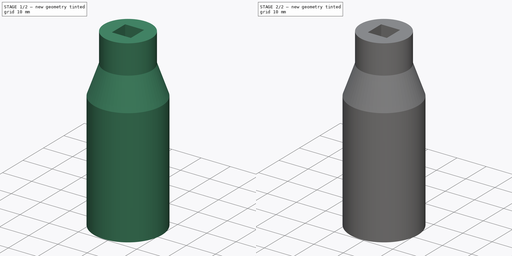
[diagram: build sequence overview — one tinted view per stage of 2, left to right]
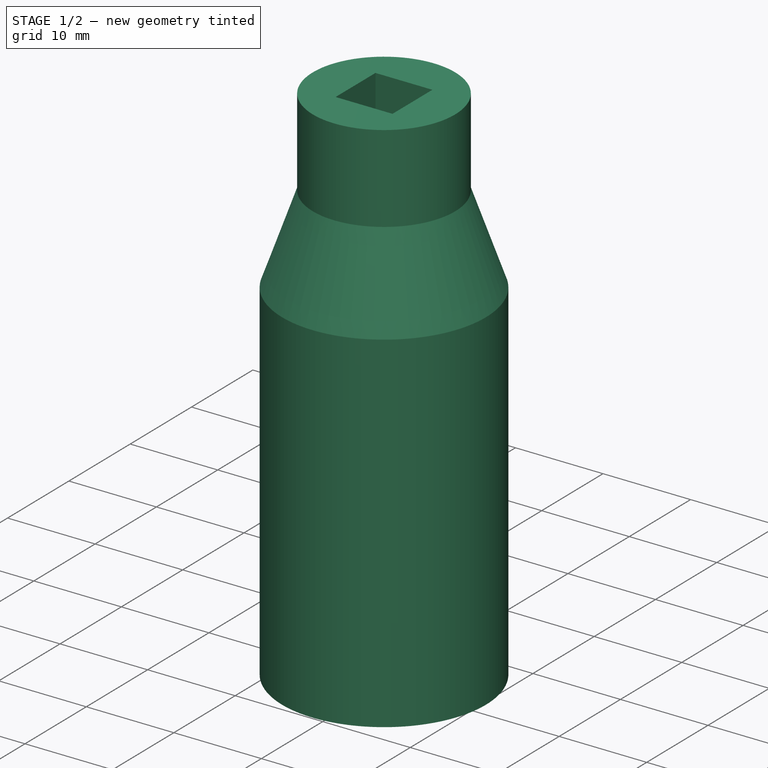
[diagram: stage 1 of 2 — iso view after this stage's code; geometry added in this stage tinted green]
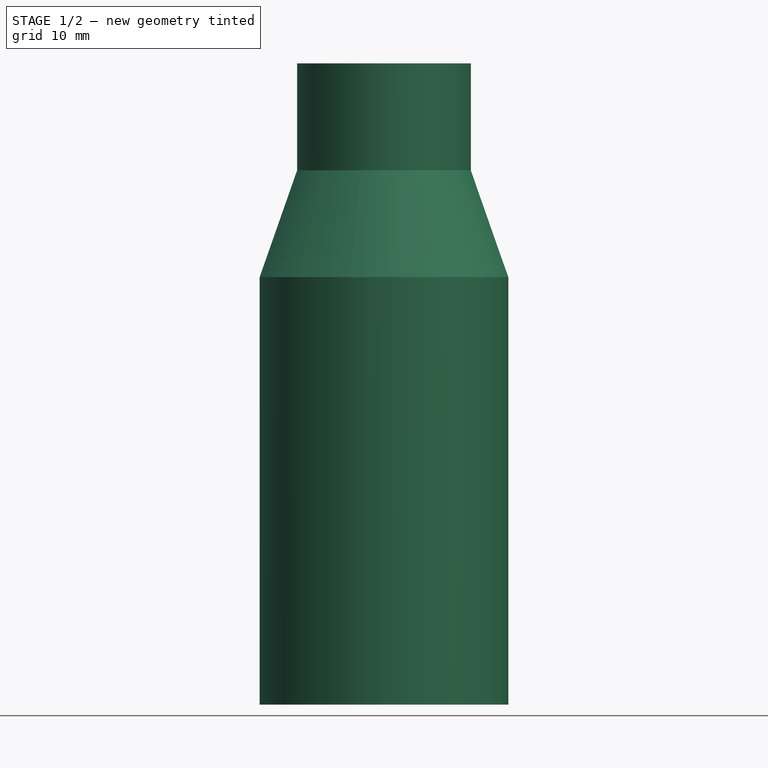
[diagram: stage 1 of 2 — front view after this stage's code; geometry added in this stage tinted green]
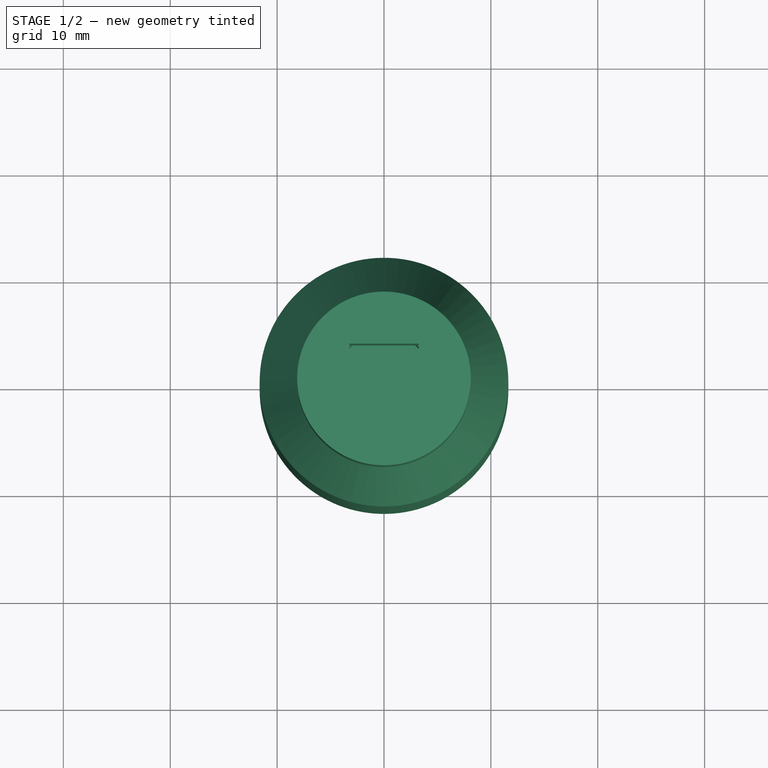
[diagram: stage 1 of 2 — top view after this stage's code; geometry added in this stage tinted green]
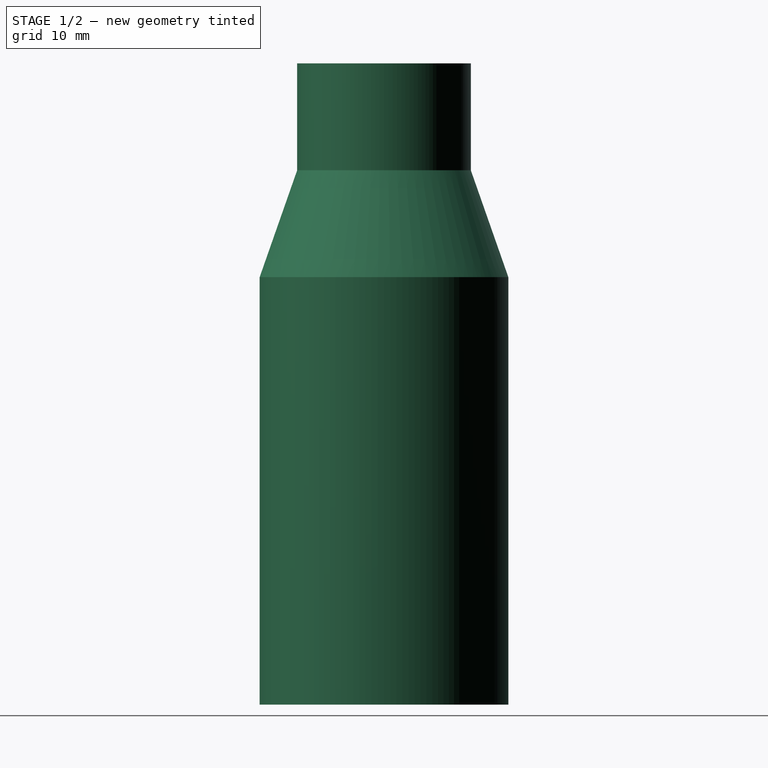
[diagram: stage 1 of 2 — right view after this stage's code; geometry added in this stage tinted green]
FCSTD DOCUMENT  (FreeCAD 0.20R29410 (Git))
Label: hex_socket
License: All rights reserved
LicenseURL: http://en.wikipedia.org/wiki/All_rights_reserved
objects: Sketcher::SketchObject×3, PartDesign::Pocket×2, Spreadsheet::Sheet×1, PartDesign::Revolution×1, PartDesign::Plane×1, PartDesign::Body×1
note: 11 computed .brp shape members not serialized (recipe doc carries the construction recipe); baked Part::Feature solids carry a one-line shape summary decoded from their .brp

FEATURE [Spreadsheet::Sheet] Spreadsheet
  cells = A1=Top height; B1=Top Socket size; C1=Top diameter scale factor; F1=Example values; A2(top_height)=10; B2(top_socket_diameter)=6.5; C2(top_diameter_scale)=2.5; F2=6.5; G2=Top Socket small; A3=Middle height; B3=Middle hole diameter; F3=10.4; G3=Bottom Hex nut M5; A4(middle_height)=10; B4(middle_hole_diameter)=9; F4=13; G4=Bottom Hex nut .312-18; A5=Bottom height; B5=Bottom hex size; C5=Bottom diameter scale factor; F5=17.9; G5=fuse holder; A6(bottom_height)=40; B6(bottom_hex_diameter)=17.9; C6(bottom_diameter_scale)=1.3
FEATURE [Sketcher::SketchObject] Sketch
  FullyConstrained = true
  MapMode = 5
  Placement = pos=(0,0,0) rot=(1,0,0;1.5708rad)
  Support = -> [XZ_Plane]
  expr: Constraints[18] = <<Spreadsheet>>.bottom_height
  expr: Constraints[19] = <<Spreadsheet>>.middle_height
  expr: Constraints[20] = <<Spreadsheet>>.top_height
  expr: Constraints[32] = <<Spreadsheet>>.middle_hole_diameter / 2
  expr: Constraints[33] = <<Spreadsheet>>.top_socket_diameter / 2 * <<Spreadsheet>>.top_diameter_scale
  expr: Constraints[34] = <<Spreadsheet>>.bottom_hex_diameter / 2 * <<Spreadsheet>>.bottom_diameter_scale
  sketch-geometry (13):
    g0: LineSegment StartX=0 StartY=0 StartZ=0 EndX=-11.635 EndY=0 EndZ=0
    g1: LineSegment StartX=-11.635 StartY=0 StartZ=0 EndX=-11.635 EndY=40 EndZ=0
    g2: LineSegment StartX=-11.635 StartY=40 StartZ=0 EndX=-8.125 EndY=50 EndZ=0
    g3: LineSegment StartX=-8.125 StartY=50 StartZ=0 EndX=-8.125 EndY=60 EndZ=0
    g4: LineSegment StartX=-8.125 StartY=60 StartZ=0 EndX=0 EndY=60 EndZ=0
    g5: LineSegment StartX=0 StartY=60 StartZ=0 EndX=0 EndY=0 EndZ=0
    g6: LineSegment StartX=-8.125 StartY=50 StartZ=0 EndX=0 EndY=50 EndZ=0
    g7: LineSegment StartX=-11.635 StartY=40 StartZ=0 EndX=0 EndY=40 EndZ=0
    g8: LineSegment StartX=0 StartY=60 StartZ=0 EndX=0 EndY=50 EndZ=0
    g9: LineSegment StartX=0 StartY=50 StartZ=0 EndX=-4.5 EndY=50 EndZ=0
    g10: LineSegment StartX=-4.5 StartY=50 StartZ=0 EndX=-4.5 EndY=40 EndZ=0
    g11: LineSegment StartX=-4.5 StartY=40 StartZ=0 EndX=0 EndY=40 EndZ=0
    g12: LineSegment StartX=0 StartY=40 StartZ=0 EndX=0 EndY=0 EndZ=0
  constraints (35):
    c: Coincident(g-1,g0)
    c: Horizontal(g0)
    c: Coincident(g0,g1)
    c: Vertical(g1)
    c: Coincident(g1,g2)
    c: Coincident(g2,g3)
    c: Vertical(g3)
    c: Coincident(g3,g4)
    c: Horizontal(g4)
    c: Coincident(g5,g4)
    c: Coincident(g5,g0)
    c: Vertical(g5)
    c: Coincident(g6,g2)
    c: PointOnObject(g6,g5)
    c: Horizontal(g6)
    c: Coincident(g7,g1)
    c: PointOnObject(g7,g5)
    c: Horizontal(g7)
    c: Distance(g1) = 40
    c: Distance(g2,g7) = 10
    c: Distance(g3) = 10
    c: Coincident(g4,g8)
    c: Coincident(g8,g6)
    c: Coincident(g8,g9)
    c: PointOnObject(g9,g6)
    c: Coincident(g9,g10)
    c: PointOnObject(g10,g7)
    c: Vertical(g10)
    c: Coincident(g10,g11)
    c: Coincident(g11,g7)
    c: Coincident(g11,g12)
    c: Coincident(g12,g0)
    c: Distance(g11) = 4.5
    c: Distance(g4) = 8.125
    c: Distance(g0) = 11.635
FEATURE [PartDesign::Revolution] Revolution  label="main"
  Angle = 360
  Axis = (0,-2e-16,1)
  Base = (0,0,0)
  Placement = pos=(0,0,0) rot=(1,0,0;1.5708rad)
  Profile = -> Sketch
  ReferenceAxis = -> Sketch [V_Axis]
FEATURE [PartDesign::Plane] DatumPlane  label="top_plane"
  AttachmentOffset = pos=(0,0,60) rot=(0,0,1;0rad)
  Length = 60
  MapMode = 5
  Placement = pos=(0,0,60) rot=(0,0,1;0rad)
  ResizeMode = 0
  Support = -> [XY_Plane]
  Width = 60
  expr: .AttachmentOffset.Base.z = <<Spreadsheet>>.bottom_height + <<Spreadsheet>>.middle_height + <<Spreadsheet>>.top_height
FEATURE [Sketcher::SketchObject] Sketch001
  FullyConstrained = true
  MapMode = 5
  Placement = pos=(0,0,60) rot=(0,0,1;0rad)
  Support = -> [DatumPlane]
  expr: Constraints[10] = <<Spreadsheet>>.top_socket_diameter
  sketch-geometry (4):
    g0: LineSegment StartX=-3.25 StartY=3.25 StartZ=0 EndX=3.25 EndY=3.25 EndZ=0
    g1: LineSegment StartX=3.25 StartY=3.25 StartZ=0 EndX=3.25 EndY=-3.25 EndZ=0
    g2: LineSegment StartX=3.25 StartY=-3.25 StartZ=0 EndX=-3.25 EndY=-3.25 EndZ=0
    g3: LineSegment StartX=-3.25 StartY=-3.25 StartZ=0 EndX=-3.25 EndY=3.25 EndZ=0
  constraints (11):
    c: Coincident(g0,g1)
    c: Coincident(g1,g2)
    c: Coincident(g2,g3)
    c: Coincident(g3,g0)
    c: Horizontal(g0)
    c: Horizontal(g2)
    c: Vertical(g1)
    c: Vertical(g3)
    c: Symmetric(g0,g2,g-1)
    c: Equal(g1,g0)
    c: Distance(g1) = 6.5
FEATURE [PartDesign::Pocket] Pocket  label="top_socket_hole"
  BaseFeature = -> Revolution
  Direction = (0,0,-1)
  Length = 10
  Length2 = 5
  Placement = pos=(0,0,0) rot=(1,0,0;1.5708rad)
  Profile = -> Sketch001
  ReferenceAxis = -> Sketch001 [N_Axis]
  Type = 0
  expr: Length = <<Spreadsheet>>.top_height
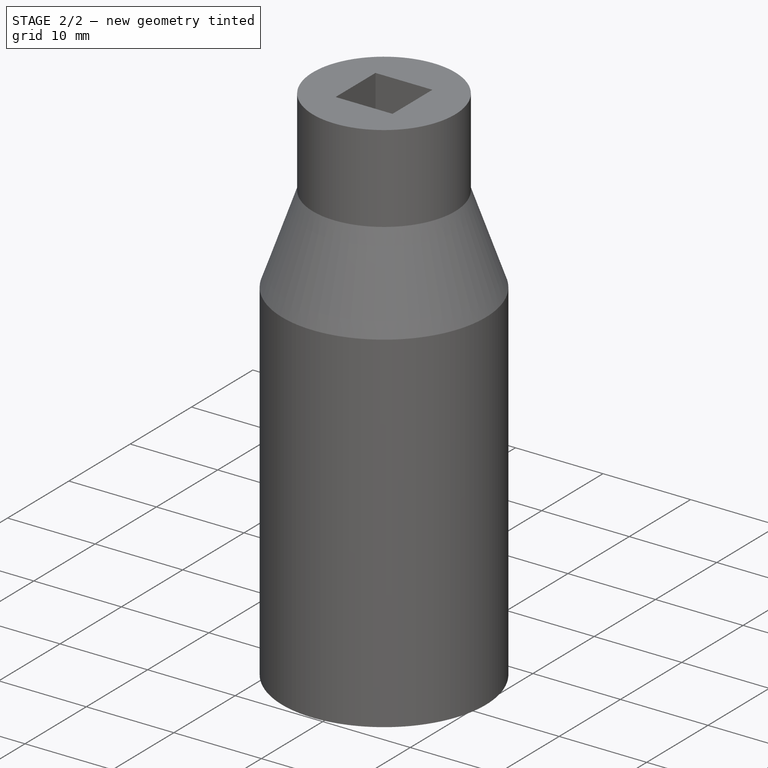
[diagram: stage 2 of 2 — iso view after this stage's code; geometry added in this stage tinted green]
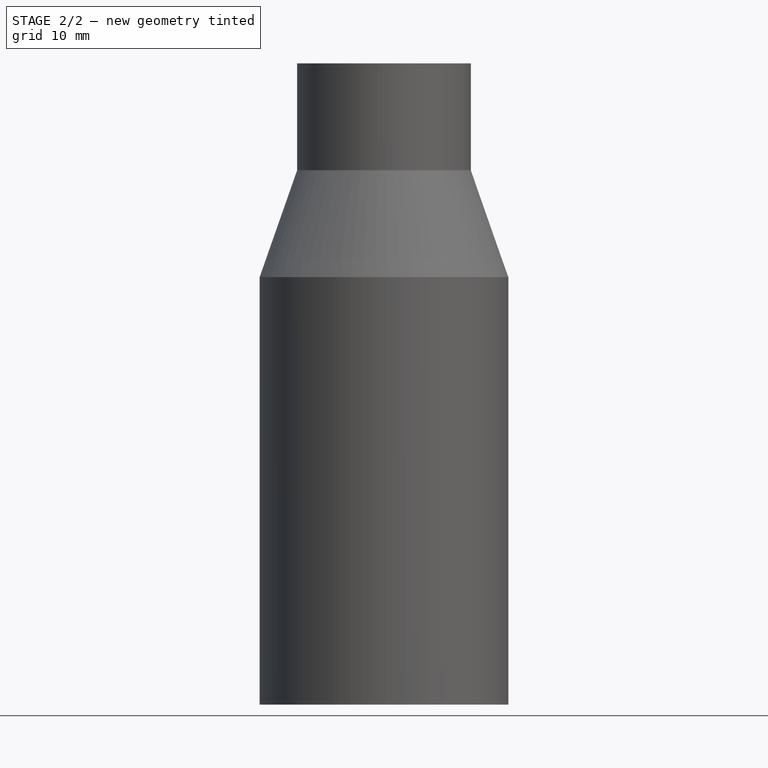
[diagram: stage 2 of 2 — front view after this stage's code; geometry added in this stage tinted green]
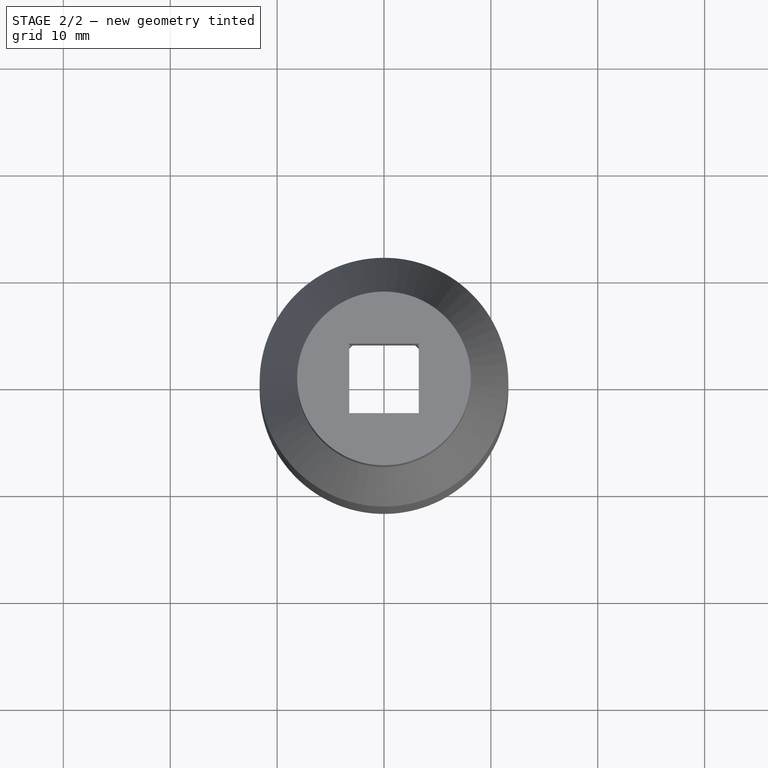
[diagram: stage 2 of 2 — top view after this stage's code; geometry added in this stage tinted green]
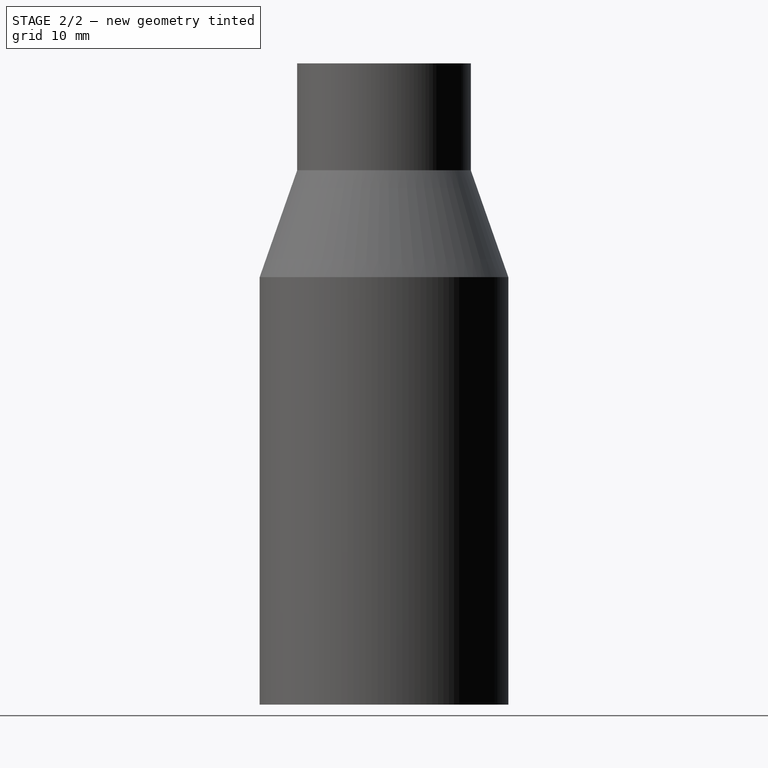
[diagram: stage 2 of 2 — right view after this stage's code; geometry added in this stage tinted green]
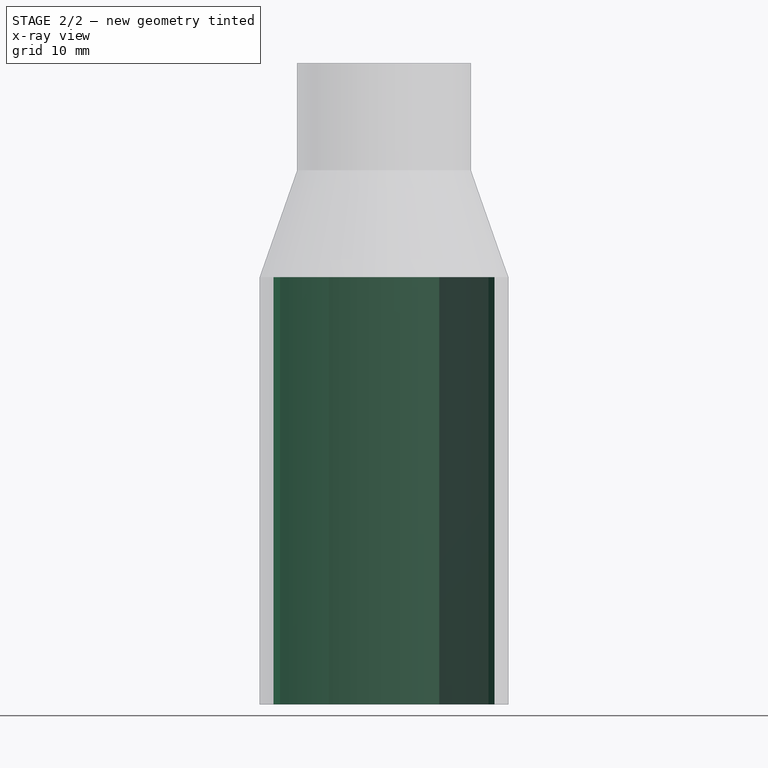
[diagram: stage 2 of 2 — x-ray composite at the front view; earlier geometry ghosted, this stage's added geometry solid]
FEATURE [Sketcher::SketchObject] Sketch002
  FullyConstrained = true
  MapMode = 5
  Support = -> [XY_Plane]
  expr: Constraints[19] = <<Spreadsheet>>.bottom_hex_diameter
  sketch-geometry (7):
    g0: LineSegment StartX=10.3346 StartY=0 StartZ=0 EndX=5.16728 EndY=8.95 EndZ=0
    g1: LineSegment StartX=5.16728 StartY=8.95 StartZ=0 EndX=-5.16728 EndY=8.95 EndZ=0
    g2: LineSegment StartX=-5.16728 StartY=8.95 StartZ=0 EndX=-10.3346 EndY=0 EndZ=0
    g3: LineSegment StartX=-10.3346 StartY=0 StartZ=0 EndX=-5.16728 EndY=-8.95 EndZ=0
    g4: LineSegment StartX=-5.16728 StartY=-8.95 StartZ=0 EndX=5.16728 EndY=-8.95 EndZ=0
    g5: LineSegment StartX=5.16728 StartY=-8.95 StartZ=0 EndX=10.3346 EndY=0 EndZ=0
    g6: Circle CenterX=0 CenterY=0 CenterZ=0 NormalX=0 NormalY=0 NormalZ=1 AngleXU=0 Radius=10.3346
  constraints (16):
    c: Coincident(g0,g1)
    c: Coincident(g1,g2)
    c: Coincident(g2,g3)
    c: Coincident(g3,g4)
    c: Coincident(g4,g5)
    c: Coincident(g5,g0)
    c: Equal(g0, g1-g5) x5
    c: PointOnObject(g0,g6)
    c: PointOnObject(g1,g6)
    c: PointOnObject(g2,g6)
    c: PointOnObject(g3,g6)
    c: PointOnObject(g4,g6)
    c: PointOnObject(g5,g6)
    c: PointOnObject(g5,g-1)
    c: Coincident(g-1,g6)
    c: Distance(g1,g3) = 17.9
FEATURE [PartDesign::Pocket] Pocket001  label="bottom_socket_hole"
  BaseFeature = -> Pocket
  Direction = (0,0,-1)
  Length = 40
  Length2 = 5
  Placement = pos=(0,0,0) rot=(1,0,0;1.5708rad)
  Profile = -> Sketch002
  ReferenceAxis = -> Sketch002 [N_Axis]
  Reversed = true
  Type = 0
  expr: Length = <<Spreadsheet>>.bottom_height
FEATURE [PartDesign::Body] Body  label="hex_socket_body"
  Group = -> [Sketch,Revolution,DatumPlane,Sketch001,Pocket,Sketch002,Pocket001]
  Origin = -> Origin
  Tip = -> Pocket001
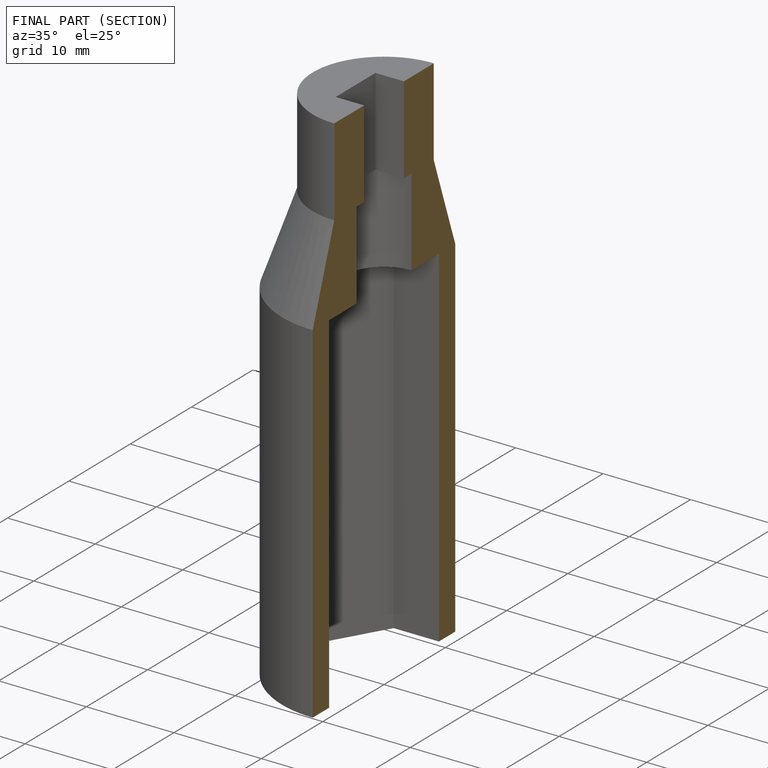
[diagram: finished part — half-section view (interior)]
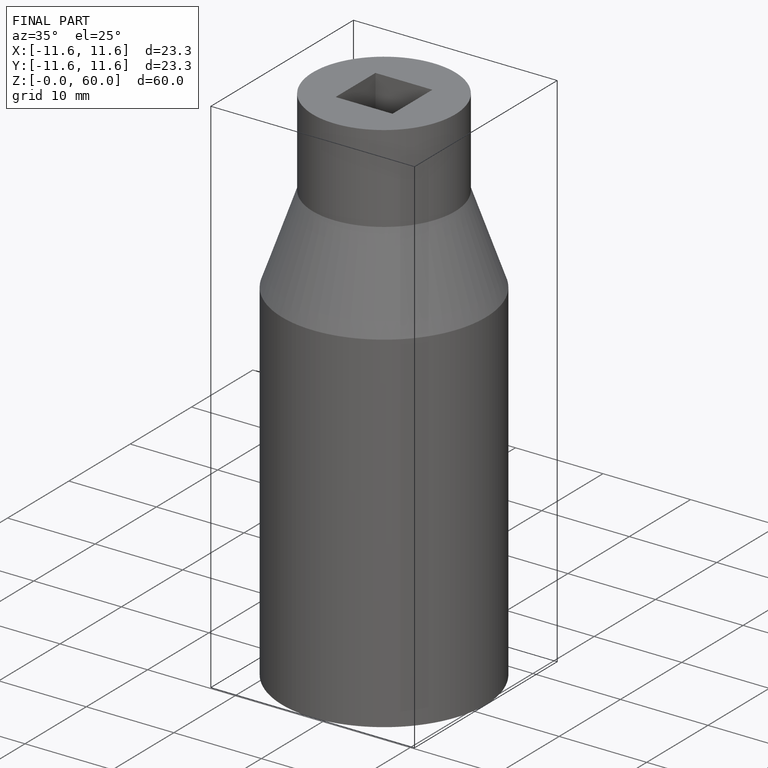
[diagram: finished part — iso view with bounding-box wireframe]
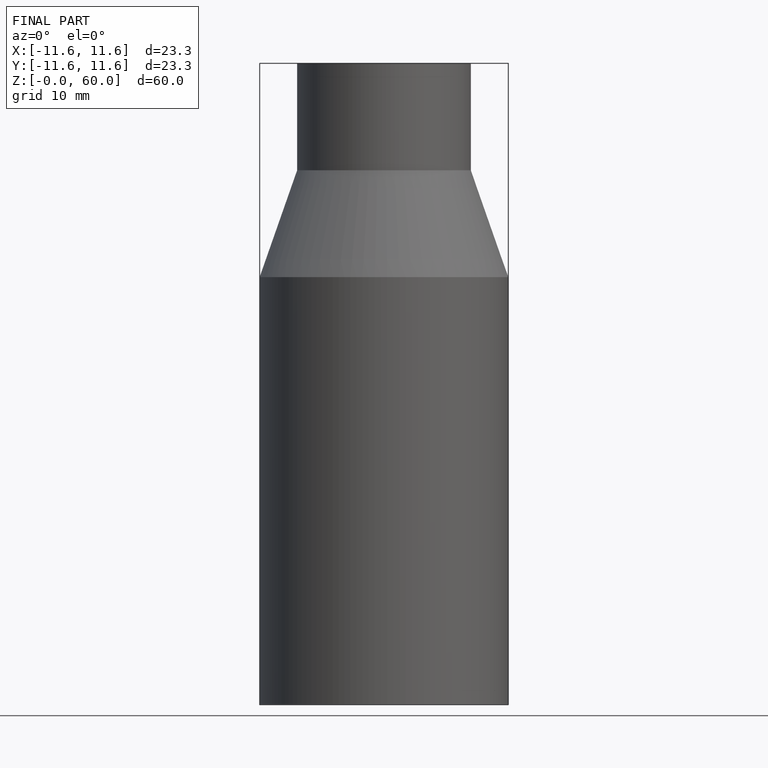
[diagram: finished part — front view with bounding-box wireframe]
